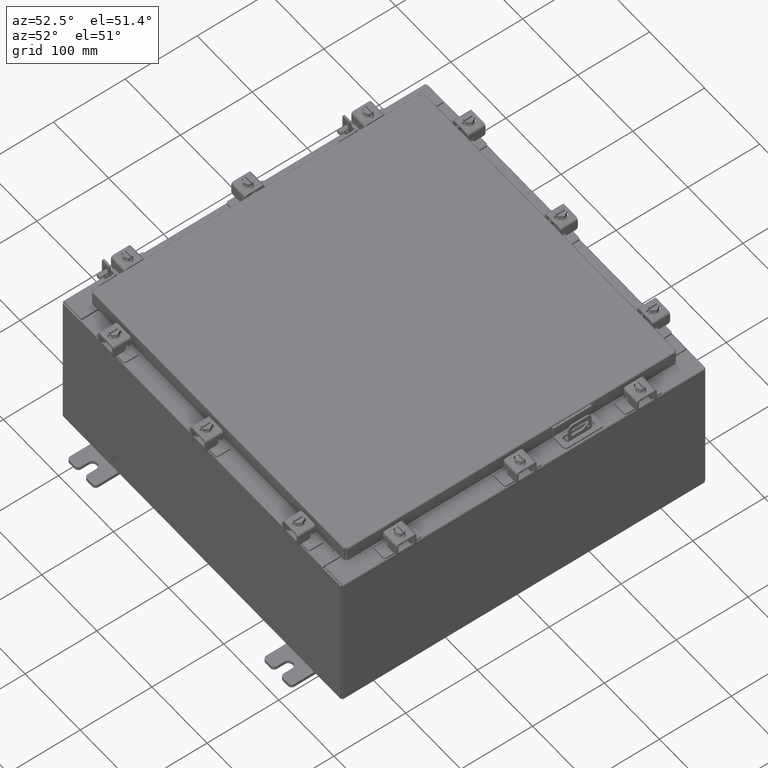
[diagram: clean part render]
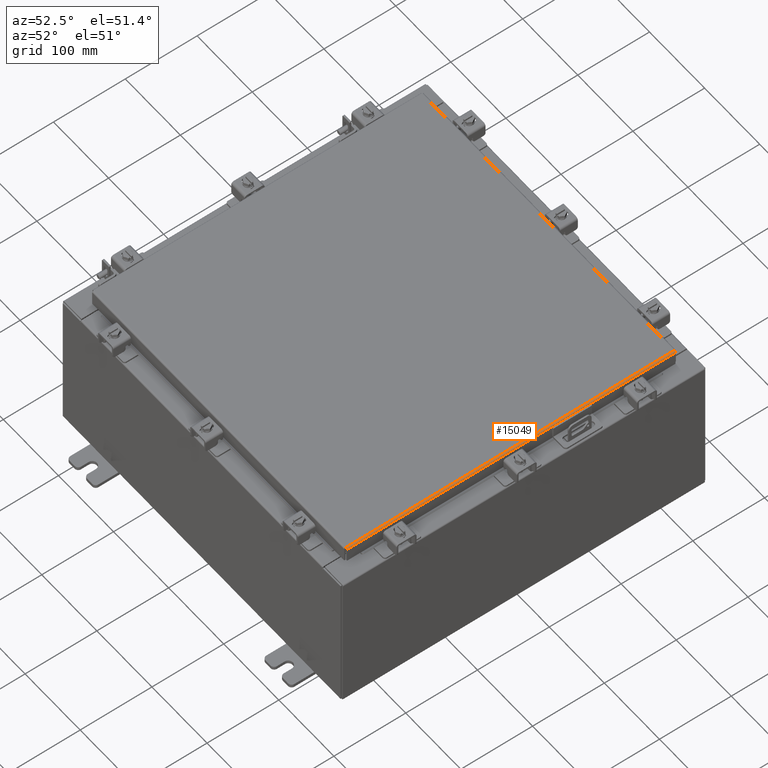
[diagram: same view with one face highlighted and labeled with its STEP entity id]
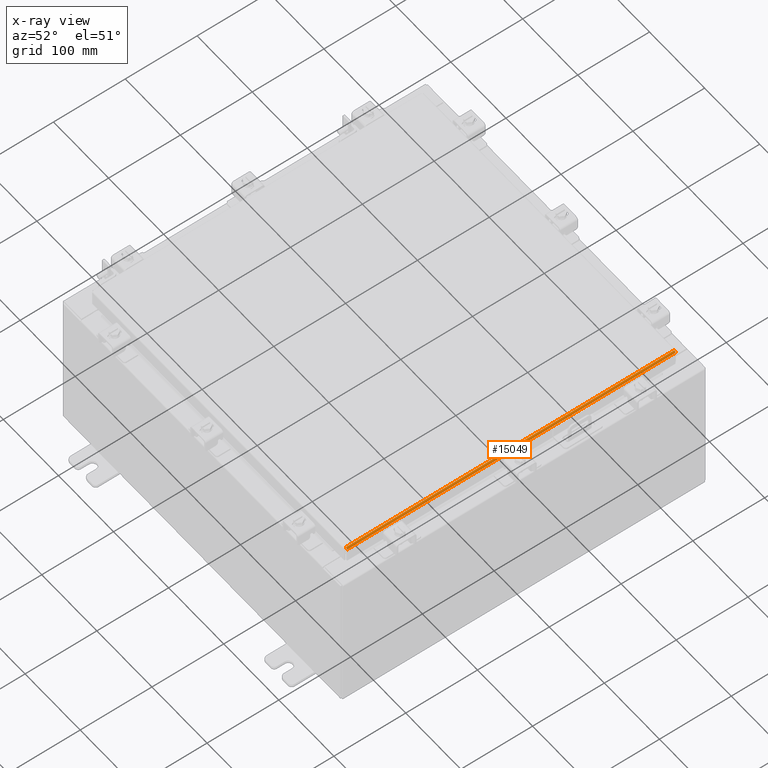
[diagram: x-ray of the same camera — body ghosted, the highlighted face saturated]
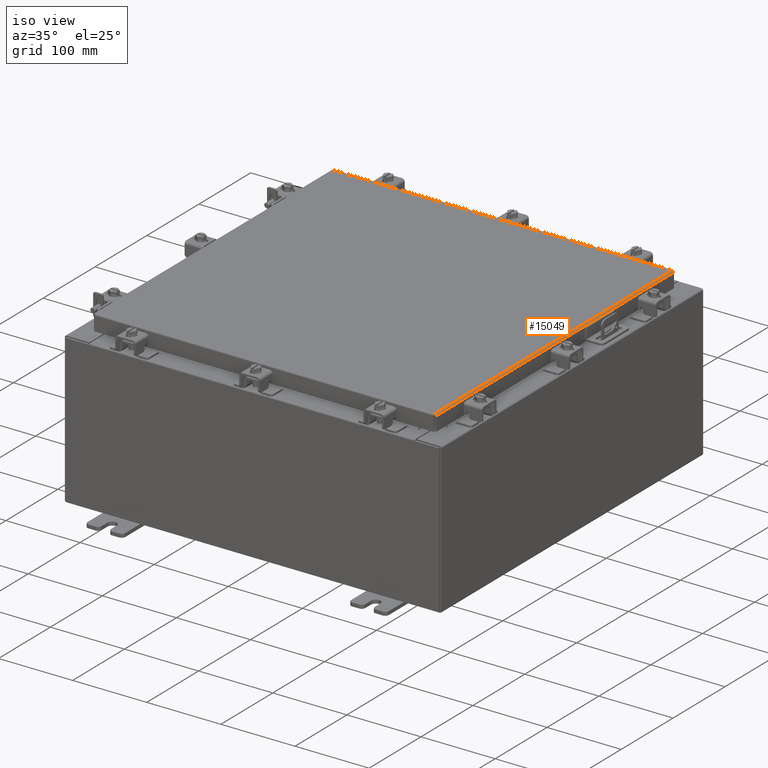
[diagram: same view with one face highlighted and labeled with its STEP entity id]
A machine part, auxiliary view. The second image highlights one B-rep face of the part: STEP entity #15049.
The next image is the same camera in x-ray: the body ghosted, the highlighted face saturated — about 0% of this face is hidden behind the body in this view.
A second angle (iso view) of the same face is appended — the face is thin or edge-on in the first view.
In plain terms, the highlighted cylindrical surface (edge-blend (fillet) strip) has radius 2.2276 mm, axis along (-0, -1, -0).
Its self-contained STEP definition (entity closure, byte-faithful):
#959 = CARTESIAN_POINT ( 'NONE',  ( 9.094000000000001200, 9.005157864376268900, -0.08769999999999918100 ) ) ;
#1062 = CARTESIAN_POINT ( 'NONE',  ( 9.082931066258671700, 9.005538576250847500, -0.04353261542147437300 ) ) ;
#1070 = DIRECTION ( 'NONE',  ( 0.0000000000000000000, 1.000000000000000000, 0.0000000000000000000 ) ) ;
#2353 = DIRECTION ( 'NONE',  ( -0.0000000000000000000, -1.000000000000000000, -0.0000000000000000000 ) ) ;
#2796 = CARTESIAN_POINT ( 'NONE',  ( 9.094000000000001200, 9.005253042344913100, -0.07622009684501077100 ) ) ;
#3161 = CARTESIAN_POINT ( 'NONE',  ( 9.082931066258664600, -9.005538576250842200, -0.04353261542147005700 ) ) ;
#3878 = VERTEX_POINT ( 'NONE', #18934 ) ;
#4266 = CARTESIAN_POINT ( 'NONE',  ( 9.094000000000001200, -5.269035934039632300E-018, -0.08769999999999918100 ) ) ;
#4510 = CARTESIAN_POINT ( 'NONE',  ( 9.006300000000001300, 9.006299999999999500, 0.0000000000000000000 ) ) ;
#4521 = CARTESIAN_POINT ( 'NONE',  ( 9.006300000000001300, -9.006299999999999500, 0.0000000000000000000 ) ) ;
#4651 = LINE ( 'NONE', #4266, #8738 ) ;
#4931 = CARTESIAN_POINT ( 'NONE',  ( 9.060195747341801100, -9.005824110156778400, -0.01756921792167882200 ) ) ;
#6000 = DIRECTION ( 'NONE',  ( -1.693590113897317100E-031, -1.000000000000000000, 6.008022858289562200E-017 ) ) ;
#6678 = CARTESIAN_POINT ( 'NONE',  ( 9.029255289458308900, -9.006109644062712900, -0.002282596256188758200 ) ) ;
#7370 = EDGE_CURVE ( 'NONE', #3878, #18907, #7687, .T. ) ;
#7663 = CYLINDRICAL_SURFACE ( 'NONE', #17232, 0.08770000000000026400 ) ;
#7687 = B_SPLINE_CURVE_WITH_KNOTS ( 'NONE', 3,
 ( #20529, #8362, #13618, #3161, #15370, #4931, #17161, #6678, #18889, #8439 ),
 .UNSPECIFIED., .F., .F.,
 ( 4, 2, 2, 2, 4 ),
 ( 0.0000000000000000000, 0.2500000000000000000, 0.5000000000000000000, 0.7500000000000000000, 1.000000000000000000 ),
 .UNSPECIFIED. ) ;
#7708 = DIRECTION ( 'NONE',  ( 1.000000000000000000, 0.0000000000000000000, 2.725618009642215600E-015 ) ) ;
#8003 = CARTESIAN_POINT ( 'NONE',  ( 9.017779903154993400, 9.006204822031353500, -1.701735877889249200E-016 ) ) ;
#8362 = CARTESIAN_POINT ( 'NONE',  ( 9.094000000000001200, -9.005253042344913100, -0.07622009684500395700 ) ) ;
#8439 = CARTESIAN_POINT ( 'NONE',  ( 9.006300000000001300, -9.006299999999999500, 0.0000000000000000000 ) ) ;
#8738 = VECTOR ( 'NONE', #6000, 39.37007874015748100 ) ;
#9473 = CARTESIAN_POINT ( 'NONE',  ( 9.006300000000001300, -9.006299999999999500, -0.08770000000000026400 ) ) ;
#9774 = CARTESIAN_POINT ( 'NONE',  ( 9.050467384578526600, 9.005919288125422600, -0.01106893374133231800 ) ) ;
#11518 = CARTESIAN_POINT ( 'NONE',  ( 9.076430782078322300, 9.005633754219490000, -0.03380425265820177800 ) ) ;
#13106 = EDGE_CURVE ( 'NONE', #18907, #14872, #21372, .T. ) ;
#13136 = EDGE_LOOP ( 'NONE', ( #15097, #19838, #16050, #19587 ) ) ;
#13273 = CARTESIAN_POINT ( 'NONE',  ( 9.091717403743812700, 9.005348220313560900, -0.06474471054169418600 ) ) ;
#13618 = CARTESIAN_POINT ( 'NONE',  ( 9.091717403743809100, -9.005348220313557300, -0.06474471054168821900 ) ) ;
#14341 = CARTESIAN_POINT ( 'NONE',  ( 9.006300000000001300, 9.006299999999999500, 0.0000000000000000000 ) ) ;
#14872 = VERTEX_POINT ( 'NONE', #14341 ) ;
#15015 = CARTESIAN_POINT ( 'NONE',  ( 9.094000000000001200, 9.005157864376268900, -0.08769999999999918100 ) ) ;
#15049 = ADVANCED_FACE ( 'NONE', ( #21577 ), #7663, .T. ) ;
#15097 = ORIENTED_EDGE ( 'NONE', *, *, #13106, .F. ) ;
#15370 = CARTESIAN_POINT ( 'NONE',  ( 9.076430782078320500, -9.005633754219491700, -0.03380425265819837100 ) ) ;
#16050 = ORIENTED_EDGE ( 'NONE', *, *, #17899, .F. ) ;
#17161 = CARTESIAN_POINT ( 'NONE',  ( 9.050467384578528400, -9.005919288125422600, -0.01106893374133114200 ) ) ;
#17232 = AXIS2_PLACEMENT_3D ( 'NONE', #9473, #2353, #7708 ) ;
#17361 = CARTESIAN_POINT ( 'NONE',  ( 9.006300000000001300, -9.006299999999999500, 0.0000000000000000000 ) ) ;
#17899 = EDGE_CURVE ( 'NONE', #21967, #3878, #4651, .T. ) ;
#18889 = CARTESIAN_POINT ( 'NONE',  ( 9.017779903154993400, -9.006204822031355300, -1.696066759738335700E-016 ) ) ;
#18907 = VERTEX_POINT ( 'NONE', #17361 ) ;
#18934 = CARTESIAN_POINT ( 'NONE',  ( 9.094000000000001200, -9.005157864376267100, -0.08769999999999918100 ) ) ;
#19465 = EDGE_CURVE ( 'NONE', #14872, #21967, #21074, .T. ) ;
#19587 = ORIENTED_EDGE ( 'NONE', *, *, #19465, .F. ) ;
#19838 = ORIENTED_EDGE ( 'NONE', *, *, #7370, .F. ) ;
#20187 = CARTESIAN_POINT ( 'NONE',  ( 9.029255289458310700, 9.006109644062714600, -0.002282596256189017100 ) ) ;
#20529 = CARTESIAN_POINT ( 'NONE',  ( 9.094000000000001200, -9.005157864376267100, -0.08769999999999918100 ) ) ;
#20815 = VECTOR ( 'NONE', #1070, 39.37007874015748100 ) ;
#21074 = B_SPLINE_CURVE_WITH_KNOTS ( 'NONE', 3,
 ( #4510, #8003, #20187, #9774, #21948, #11518, #1062, #13273, #2796, #15015 ),
 .UNSPECIFIED., .F., .F.,
 ( 4, 2, 2, 2, 4 ),
 ( 0.0000000000000000000, 0.2500000000000000000, 0.5000000000000000000, 0.7500000000000000000, 1.000000000000000000 ),
 .UNSPECIFIED. ) ;
#21372 = LINE ( 'NONE', #4521, #20815 ) ;
#21577 = FACE_OUTER_BOUND ( 'NONE', #13136, .T. ) ;
#21948 = CARTESIAN_POINT ( 'NONE',  ( 9.060195747341802900, 9.005824110156780200, -0.01756921792168066000 ) ) ;
#21967 = VERTEX_POINT ( 'NONE', #959 ) ;